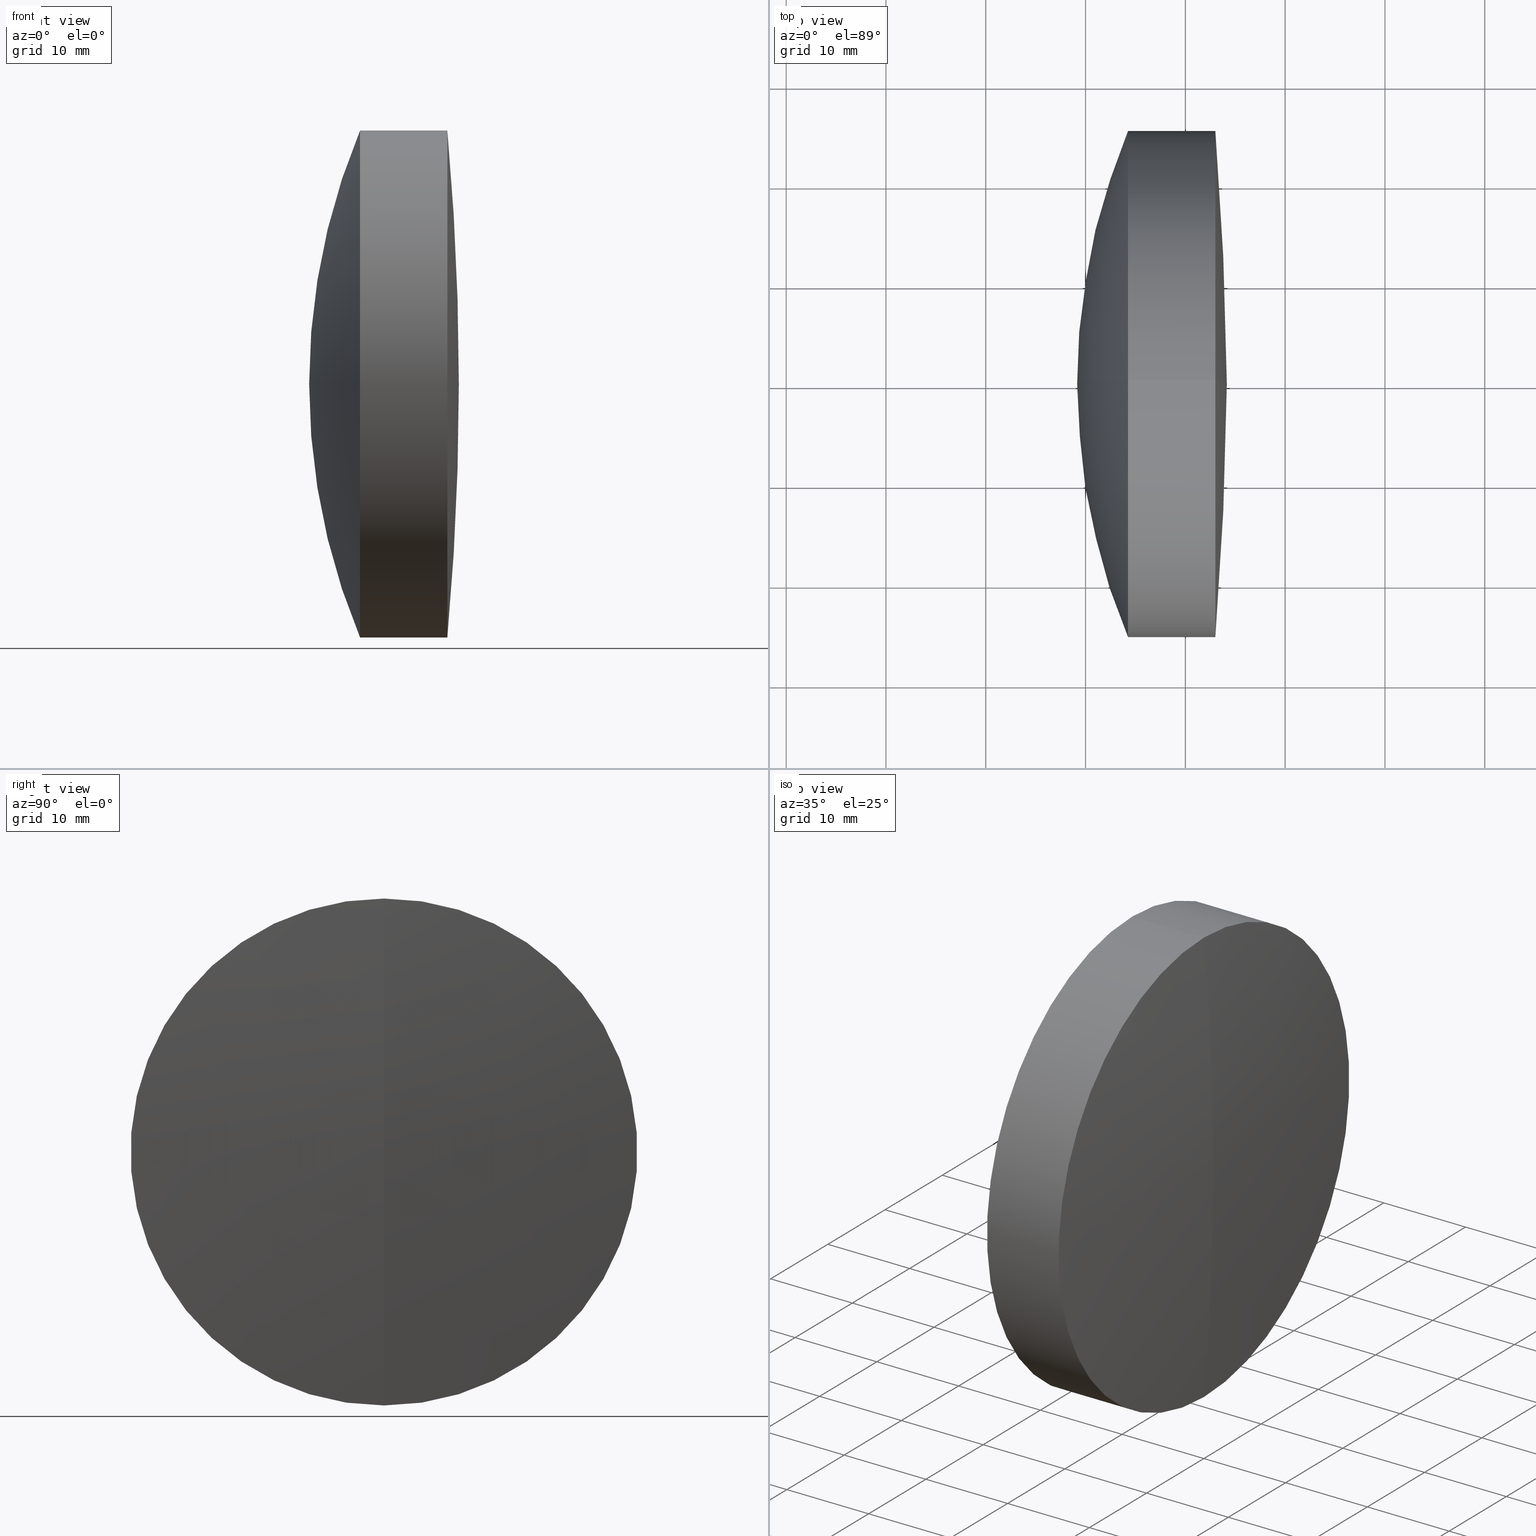
[diagram: canonical four-view strip — front | top / right | iso, engineering-drawing reading convention]
A machine part, canonical four-view strip (front | top / right | iso — engineering-drawing reading convention). The complete STEP part file that produces these views, byte-faithful:
ISO-10303-21;
HEADER;
FILE_DESCRIPTION (( 'STEP AP214' ),
    '1' );
FILE_NAME ('145135.STEP',
    '2019-06-05T01:52:00',
    ( 'user' ),
    ( '΢���й�' ),
    'SwSTEP 2.0',
    'SolidWorks 2016',
    '' );
FILE_SCHEMA (( 'AUTOMOTIVE_DESIGN' ));
ENDSEC;

DATA;
#1 = ADVANCED_FACE ( 'NONE', ( #89 ), #25, .T. ) ;
#2 = AXIS2_PLACEMENT_3D ( 'NONE', #224, #59, #14 ) ;
#3 = PRODUCT_DEFINITION_SHAPE ( 'NONE', 'NONE',  #299 ) ;
#4 = ORIENTED_EDGE ( 'NONE', *, *, #20, .T. ) ;
#5 = DIRECTION ( 'NONE',  ( 0.0000000000000000000, 0.0000000000000000000, 1.000000000000000000 ) ) ;
#6 = AXIS2_PLACEMENT_3D ( 'NONE', #162, #53, #134 ) ;
#7 = VERTEX_POINT ( 'NONE', #103 ) ;
#8 = EDGE_LOOP ( 'NONE', ( #293, #50, #82, #208 ) ) ;
#9 =( GEOMETRIC_REPRESENTATION_CONTEXT ( 3 ) GLOBAL_UNCERTAINTY_ASSIGNED_CONTEXT ( ( #12 ) ) GLOBAL_UNIT_ASSIGNED_CONTEXT ( ( #42, #204, #21 ) ) REPRESENTATION_CONTEXT ( 'NONE', 'WORKASPACE' ) );
#10 = DIRECTION ( 'NONE',  ( 0.0000000000000000000, 1.000000000000000000, 0.0000000000000000000 ) ) ;
#11 = FILL_AREA_STYLE ('',( #170 ) ) ;
#12 = UNCERTAINTY_MEASURE_WITH_UNIT (LENGTH_MEASURE( 1.000000000000000100E-005 ), #42, 'distance_accuracy_value', 'NONE');
#13 = CARTESIAN_POINT ( 'NONE',  ( 536.0667524492886300, 3.110602869834283200E-015, -25.40000000000006300 ) ) ;
#14 = DIRECTION ( 'NONE',  ( 0.0000000000000000000, 0.0000000000000000000, 1.000000000000000000 ) ) ;
#15 = ORIENTED_EDGE ( 'NONE', *, *, #20, .F. ) ;
#16 = AXIS2_PLACEMENT_3D ( 'NONE', #188, #326, #101 ) ;
#17 = EDGE_LOOP ( 'NONE', ( #274, #175, #90 ) ) ;
#18 = CIRCLE ( 'NONE', #73, 55.99999999999996400 ) ;
#19 = DIRECTION ( 'NONE',  ( -0.0000000000000000000, 1.000000000000000000, 1.224646799147353200E-016 ) ) ;
#20 = EDGE_CURVE ( 'NONE', #212, #295, #164, .T. ) ;
#21 =( NAMED_UNIT ( * ) SI_UNIT ( $, .STERADIAN. ) SOLID_ANGLE_UNIT ( ) );
#22 = FILL_AREA_STYLE_COLOUR ( '', #157 ) ;
#23 = ADVANCED_FACE ( 'NONE', ( #311 ), #32, .T. ) ;
#24 = FILL_AREA_STYLE ('',( #271 ) ) ;
#25 = SPHERICAL_SURFACE ( 'NONE', #83, 280.5999999999999700 ) ;
#26 = VERTEX_POINT ( 'NONE', #129 ) ;
#27 = AXIS2_PLACEMENT_3D ( 'NONE', #178, #19, #202 ) ;
#28 = CARTESIAN_POINT ( 'NONE',  ( 536.0667524492886300, 3.110602869834276100E-015, -25.39999999999998800 ) ) ;
#29 = CARTESIAN_POINT ( 'NONE',  ( 534.2585188813353600, 0.0000000000000000000, 0.0000000000000000000 ) ) ;
#30 = COLOUR_RGB ( '',1.000000000000000000, 1.000000000000000000, 1.000000000000000000 ) ;
#31 = CARTESIAN_POINT ( 'NONE',  ( 594.9584365089566500, 0.0000000000000000000, -1.033766538299557700E-014 ) ) ;
#32 = CYLINDRICAL_SURFACE ( 'NONE', #47, 25.40000000000005500 ) ;
#33 = VERTEX_POINT ( 'NONE', #297 ) ;
#34 = FACE_OUTER_BOUND ( 'NONE', #300, .T. ) ;
#35 = SPHERICAL_SURFACE ( 'NONE', #93, 55.99999999999996400 ) ;
#36 = AXIS2_PLACEMENT_3D ( 'NONE', #118, #288, #265 ) ;
#37 = DIRECTION ( 'NONE',  ( 0.0000000000000000000, -1.224646799147353200E-016, 1.000000000000000000 ) ) ;
#38 = DIRECTION ( 'NONE',  ( 0.0000000000000000000, 0.0000000000000000000, 1.000000000000000000 ) ) ;
#39 = DIRECTION ( 'NONE',  ( 0.0000000000000000000, 1.000000000000000000, 0.0000000000000000000 ) ) ;
#40 = CIRCLE ( 'NONE', #287, 25.40000000000005500 ) ;
#41 = CARTESIAN_POINT ( 'NONE',  ( 124.5233095260452400, 0.0000000000000000000, 25.39999999999998800 ) ) ;
#42 =( LENGTH_UNIT ( ) NAMED_UNIT ( * ) SI_UNIT ( .MILLI., .METRE. ) );
#43 = AXIS2_PLACEMENT_3D ( 'NONE', #149, #267, #92 ) ;
#44 = ORIENTED_EDGE ( 'NONE', *, *, #114, .T. ) ;
#45 = ADVANCED_FACE ( 'NONE', ( #95 ), #302, .T. ) ;
#46 = SURFACE_STYLE_USAGE ( .BOTH. , #210 ) ;
#47 = AXIS2_PLACEMENT_3D ( 'NONE', #160, #327, #215 ) ;
#48 = AXIS2_PLACEMENT_3D ( 'NONE', #192, #39, #329 ) ;
#49 = CIRCLE ( 'NONE', #6, 65.80000000000006800 ) ;
#50 = ORIENTED_EDGE ( 'NONE', *, *, #201, .T. ) ;
#51 = DIRECTION ( 'NONE',  ( -1.000000000000000000, -0.0000000000000000000, -0.0000000000000000000 ) ) ;
#52 = EDGE_LOOP ( 'NONE', ( #335, #223, #282, #108 ) ) ;
#53 = DIRECTION ( 'NONE',  ( -0.0000000000000000000, 1.000000000000000000, 1.224646799147353200E-016 ) ) ;
#54 = DIRECTION ( 'NONE',  ( -0.0000000000000000000, 1.000000000000000000, 1.224646799147353200E-016 ) ) ;
#55 = ORIENTED_EDGE ( 'NONE', *, *, #303, .F. ) ;
#56 = AXIS2_PLACEMENT_3D ( 'NONE', #343, #205, #345 ) ;
#57 = AXIS2_PLACEMENT_3D ( 'NONE', #334, #168, #37 ) ;
#58 = DIRECTION ( 'NONE',  ( -1.000000000000000000, -0.0000000000000000000, -0.0000000000000000000 ) ) ;
#59 = DIRECTION ( 'NONE',  ( -1.000000000000000000, -0.0000000000000000000, -0.0000000000000000000 ) ) ;
#60 = VERTEX_POINT ( 'NONE', #28 ) ;
#61 = DIRECTION ( 'NONE',  ( 0.0000000000000000000, 0.0000000000000000000, 1.000000000000000000 ) ) ;
#62 = EDGE_CURVE ( 'NONE', #26, #60, #123, .T. ) ;
#63 = ORIENTED_EDGE ( 'NONE', *, *, #248, .T. ) ;
#64 = SURFACE_SIDE_STYLE ('',( #158 ) ) ;
#65 = UNCERTAINTY_MEASURE_WITH_UNIT (LENGTH_MEASURE( 1.000000000000000100E-005 ), #279, 'distance_accuracy_value', 'NONE');
#66 = FILL_AREA_STYLE ('',( #22 ) ) ;
#67 = EDGE_LOOP ( 'NONE', ( #193, #234, #132 ) ) ;
#68 = ADVANCED_FACE ( 'NONE', ( #242 ), #195, .F. ) ;
#69 =( NAMED_UNIT ( * ) PLANE_ANGLE_UNIT ( ) SI_UNIT ( $, .RADIAN. ) );
#70 = FACE_OUTER_BOUND ( 'NONE', #96, .T. ) ;
#71 = ORIENTED_EDGE ( 'NONE', *, *, #84, .T. ) ;
#72 = CARTESIAN_POINT ( 'NONE',  ( 486.1584365089566400, 0.0000000000000000000, -9.937829943441984000E-015 ) ) ;
#73 = AXIS2_PLACEMENT_3D ( 'NONE', #91, #347, #182 ) ;
#74 = CARTESIAN_POINT ( 'NONE',  ( 486.1584365089566400, 0.0000000000000000000, -9.937829943441984000E-015 ) ) ;
#75 = DIRECTION ( 'NONE',  ( 0.0000000000000000000, 0.0000000000000000000, 1.000000000000000000 ) ) ;
#76 = ORIENTED_EDGE ( 'NONE', *, *, #231, .F. ) ;
#77 = EDGE_CURVE ( 'NONE', #312, #125, #174, .T. ) ;
#78 = CIRCLE ( 'NONE', #185, 55.99999999999996400 ) ;
#79 = EDGE_LOOP ( 'NONE', ( #55, #243, #221 ) ) ;
#80 = CARTESIAN_POINT ( 'NONE',  ( 536.0667524492886300, 0.0000000000000000000, 0.0000000000000000000 ) ) ;
#81 = AXIS2_PLACEMENT_3D ( 'NONE', #217, #51, #222 ) ;
#82 = ORIENTED_EDGE ( 'NONE', *, *, #194, .F. ) ;
#83 = AXIS2_PLACEMENT_3D ( 'NONE', #191, #301, #75 ) ;
#84 = EDGE_CURVE ( 'NONE', #212, #304, #49, .T. ) ;
#85 = VECTOR ( 'NONE', #247, 1000.000000000000000 ) ;
#86 = PRESENTATION_STYLE_ASSIGNMENT (( #237 ) ) ;
#87 = CARTESIAN_POINT ( 'NONE',  ( 534.2585188813353600, 0.0000000000000000000, 0.0000000000000000000 ) ) ;
#88 = LINE ( 'NONE', #143, #259 ) ;
#89 = FACE_OUTER_BOUND ( 'NONE', #203, .T. ) ;
#90 = ORIENTED_EDGE ( 'NONE', *, *, #62, .F. ) ;
#91 = CARTESIAN_POINT ( 'NONE',  ( 486.1584365089566400, 0.0000000000000000000, -9.937829943441984000E-015 ) ) ;
#92 = DIRECTION ( 'NONE',  ( 0.0000000000000000000, 0.0000000000000000000, -1.000000000000000000 ) ) ;
#93 = AXIS2_PLACEMENT_3D ( 'NONE', #116, #147, #61 ) ;
#94 = ADVANCED_FACE ( 'NONE', ( #70 ), #115, .T. ) ;
#95 = FACE_OUTER_BOUND ( 'NONE', #17, .T. ) ;
#96 = EDGE_LOOP ( 'NONE', ( #144, #117, #154 ) ) ;
#97 = CIRCLE ( 'NONE', #253, 280.5999999999999700 ) ;
#98 = CYLINDRICAL_SURFACE ( 'NONE', #56, 25.39999999999998800 ) ;
#99 = EDGE_CURVE ( 'NONE', #233, #105, #97, .T. ) ;
#100 = FACE_OUTER_BOUND ( 'NONE', #286, .T. ) ;
#101 = DIRECTION ( 'NONE',  ( 0.0000000000000000000, 0.0000000000000000000, 1.000000000000000000 ) ) ;
#102 = ORIENTED_EDGE ( 'NONE', *, *, #201, .F. ) ;
#103 = CARTESIAN_POINT ( 'NONE',  ( 543.0064638771954200, 3.110602869834284000E-015, -25.40000000000005500 ) ) ;
#104 = DIRECTION ( 'NONE',  ( 0.0000000000000000000, 1.000000000000000000, 0.0000000000000000000 ) ) ;
#105 = VERTEX_POINT ( 'NONE', #199 ) ;
#106 = FACE_OUTER_BOUND ( 'NONE', #197, .T. ) ;
#107 = CIRCLE ( 'NONE', #332, 65.80000000000006800 ) ;
#108 = ORIENTED_EDGE ( 'NONE', *, *, #216, .F. ) ;
#109 =( NAMED_UNIT ( * ) PLANE_ANGLE_UNIT ( ) SI_UNIT ( $, .RADIAN. ) );
#110 = DIRECTION ( 'NONE',  ( 0.0000000000000000000, -1.000000000000000000, 0.0000000000000000000 ) ) ;
#111 = DIRECTION ( 'NONE',  ( 0.0000000000000000000, 0.0000000000000000000, 1.000000000000000000 ) ) ;
#112 = DIRECTION ( 'NONE',  ( -1.000000000000000000, -0.0000000000000000000, -0.0000000000000000000 ) ) ;
#113 = DIRECTION ( 'NONE',  ( -1.000000000000000000, -0.0000000000000000000, -0.0000000000000000000 ) ) ;
#114 = EDGE_CURVE ( 'NONE', #105, #7, #40, .T. ) ;
#115 = SPHERICAL_SURFACE ( 'NONE', #133, 55.99999999999998600 ) ;
#116 = CARTESIAN_POINT ( 'NONE',  ( 486.1584365089566400, 0.0000000000000000000, -9.937829943441984000E-015 ) ) ;
#117 = ORIENTED_EDGE ( 'NONE', *, *, #273, .T. ) ;
#118 = CARTESIAN_POINT ( 'NONE',  ( 543.0064638771954200, 0.0000000000000000000, 0.0000000000000000000 ) ) ;
#119 = ADVANCED_FACE ( 'NONE', ( #34 ), #319, .T. ) ;
#120 =( NAMED_UNIT ( * ) SI_UNIT ( $, .STERADIAN. ) SOLID_ANGLE_UNIT ( ) );
#121 = CLOSED_SHELL ( 'NONE', ( #45, #270, #240, #119, #317, #94 ) ) ;
#122 = DIRECTION ( 'NONE',  ( 0.0000000000000000000, 0.0000000000000000000, 1.000000000000000000 ) ) ;
#123 = CIRCLE ( 'NONE', #156, 25.39999999999998800 ) ;
#124 = PRODUCT_DEFINITION_CONTEXT ( 'detailed design', #328, 'design' ) ;
#125 = VERTEX_POINT ( 'NONE', #13 ) ;
#126 = DIRECTION ( 'NONE',  ( -1.000000000000000000, -0.0000000000000000000, -0.0000000000000000000 ) ) ;
#127 =( GEOMETRIC_REPRESENTATION_CONTEXT ( 3 ) GLOBAL_UNCERTAINTY_ASSIGNED_CONTEXT ( ( #298 ) ) GLOBAL_UNIT_ASSIGNED_CONTEXT ( ( #238, #291, #120 ) ) REPRESENTATION_CONTEXT ( 'NONE', 'WORKASPACE' ) );
#128 = MANIFOLD_SOLID_BREP ( '��ת1', #121 ) ;
#129 = CARTESIAN_POINT ( 'NONE',  ( 536.0667524492886300, 0.0000000000000000000, 25.39999999999998800 ) ) ;
#130 = DIRECTION ( 'NONE',  ( 0.0000000000000000000, 1.000000000000000000, 0.0000000000000000000 ) ) ;
#131 = APPLICATION_PROTOCOL_DEFINITION ( 'draft international standard', 'automotive_design', 1998, #328 ) ;
#132 = ORIENTED_EDGE ( 'NONE', *, *, #77, .T. ) ;
#133 = AXIS2_PLACEMENT_3D ( 'NONE', #72, #104, #220 ) ;
#134 = DIRECTION ( 'NONE',  ( 0.0000000000000000000, -1.224646799147353200E-016, 1.000000000000000000 ) ) ;
#135 = AXIS2_PLACEMENT_3D ( 'NONE', #74, #130, #246 ) ;
#136 = ORIENTED_EDGE ( 'NONE', *, *, #145, .F. ) ;
#137 = CARTESIAN_POINT ( 'NONE',  ( 542.1584365089565800, 0.0000000000000000000, -6.508818905829395900E-015 ) ) ;
#138 = SURFACE_STYLE_USAGE ( .BOTH. , #306 ) ;
#139 = DIRECTION ( 'NONE',  ( 0.0000000000000000000, 1.000000000000000000, 0.0000000000000000000 ) ) ;
#140 = ORIENTED_EDGE ( 'NONE', *, *, #114, .F. ) ;
#141 = DIRECTION ( 'NONE',  ( 0.0000000000000000000, 0.0000000000000000000, -1.000000000000000000 ) ) ;
#142 = PRODUCT ( '145135', '145135', '', ( #161 ) ) ;
#143 = CARTESIAN_POINT ( 'NONE',  ( -0.5519199926577972300, 0.0000000000000000000, 25.40000000000005500 ) ) ;
#144 = ORIENTED_EDGE ( 'NONE', *, *, #289, .F. ) ;
#145 = EDGE_CURVE ( 'NONE', #233, #7, #250, .T. ) ;
#146 = ORIENTED_EDGE ( 'NONE', *, *, #145, .T. ) ;
#147 = DIRECTION ( 'NONE',  ( 0.0000000000000000000, 1.000000000000000000, 0.0000000000000000000 ) ) ;
#148 = AXIS2_PLACEMENT_3D ( 'NONE', #341, #113, #207 ) ;
#149 = CARTESIAN_POINT ( 'NONE',  ( 486.1584365089566400, 0.0000000000000000000, -9.937829943441984000E-015 ) ) ;
#150 = ADVANCED_FACE ( 'NONE', ( #106 ), #152, .T. ) ;
#151 = APPLICATION_PROTOCOL_DEFINITION ( 'draft international standard', 'automotive_design', 1998, #183 ) ;
#152 = SPHERICAL_SURFACE ( 'NONE', #277, 280.5999999999999700 ) ;
#153 = VERTEX_POINT ( 'NONE', #137 ) ;
#154 = ORIENTED_EDGE ( 'NONE', *, *, #214, .F. ) ;
#155 = CYLINDRICAL_SURFACE ( 'NONE', #2, 25.40000000000005500 ) ;
#156 = AXIS2_PLACEMENT_3D ( 'NONE', #324, #126, #296 ) ;
#157 = COLOUR_RGB ( '',1.000000000000000000, 1.000000000000000000, 1.000000000000000000 ) ;
#158 = SURFACE_STYLE_FILL_AREA ( #66 ) ;
#159 = FACE_OUTER_BOUND ( 'NONE', #8, .T. ) ;
#160 = CARTESIAN_POINT ( 'NONE',  ( -0.5519199926577972300, 0.0000000000000000000, 0.0000000000000000000 ) ) ;
#161 = PRODUCT_CONTEXT ( 'NONE', #183, 'mechanical' ) ;
#162 = CARTESIAN_POINT ( 'NONE',  ( 594.9584365089566500, 0.0000000000000000000, -1.033766538299557700E-014 ) ) ;
#163 = CIRCLE ( 'NONE', #263, 25.39999999999998800 ) ;
#164 = CIRCLE ( 'NONE', #331, 25.39999999999998800 ) ;
#165 = ORIENTED_EDGE ( 'NONE', *, *, #219, .T. ) ;
#166 = CIRCLE ( 'NONE', #27, 55.99999999999998600 ) ;
#167 = CARTESIAN_POINT ( 'NONE',  ( 486.1584365089566400, 0.0000000000000000000, -9.937829943441984000E-015 ) ) ;
#168 = DIRECTION ( 'NONE',  ( -0.0000000000000000000, 1.000000000000000000, 1.224646799147353200E-016 ) ) ;
#169 = STYLED_ITEM ( 'NONE', ( #239 ), #275 ) ;
#170 = FILL_AREA_STYLE_COLOUR ( '', #330 ) ;
#171 = CARTESIAN_POINT ( 'NONE',  ( 594.9584365089566500, 0.0000000000000000000, -1.033766538299557700E-014 ) ) ;
#172 = CIRCLE ( 'NONE', #313, 25.39999999999998800 ) ;
#173 = DIRECTION ( 'NONE',  ( -1.000000000000000000, -0.0000000000000000000, -0.0000000000000000000 ) ) ;
#174 = CIRCLE ( 'NONE', #81, 25.40000000000005200 ) ;
#175 = ORIENTED_EDGE ( 'NONE', *, *, #289, .T. ) ;
#176 = SURFACE_STYLE_FILL_AREA ( #11 ) ;
#177 = EDGE_CURVE ( 'NONE', #33, #125, #78, .T. ) ;
#178 = CARTESIAN_POINT ( 'NONE',  ( 486.1584365089566400, 0.0000000000000000000, -9.937829943441984000E-015 ) ) ;
#179 = MECHANICAL_DESIGN_GEOMETRIC_PRESENTATION_REPRESENTATION (  '', ( #213 ), #280 ) ;
#180 = SPHERICAL_SURFACE ( 'NONE', #48, 65.80000000000006800 ) ;
#181 = ORIENTED_EDGE ( 'NONE', *, *, #211, .F. ) ;
#182 = DIRECTION ( 'NONE',  ( 0.0000000000000000000, 0.0000000000000000000, -1.000000000000000000 ) ) ;
#183 = APPLICATION_CONTEXT ( 'automotive_design' ) ;
#184 = CYLINDRICAL_SURFACE ( 'NONE', #148, 25.39999999999998800 ) ;
#185 = AXIS2_PLACEMENT_3D ( 'NONE', #167, #54, #252 ) ;
#186 = FACE_OUTER_BOUND ( 'NONE', #249, .T. ) ;
#187 = ORIENTED_EDGE ( 'NONE', *, *, #194, .T. ) ;
#188 = CARTESIAN_POINT ( 'NONE',  ( 486.1584365089566400, 0.0000000000000000000, -9.937829943441984000E-015 ) ) ;
#189 = PRESENTATION_LAYER_ASSIGNMENT (  '', '', ( #169 ) ) ;
#190 = DIRECTION ( 'NONE',  ( -1.000000000000000000, -0.0000000000000000000, -0.0000000000000000000 ) ) ;
#191 = CARTESIAN_POINT ( 'NONE',  ( 263.5584365089565600, 0.0000000000000000000, 0.0000000000000000000 ) ) ;
#192 = CARTESIAN_POINT ( 'NONE',  ( 594.9584365089566500, 0.0000000000000000000, -1.033766538299557700E-014 ) ) ;
#193 = ORIENTED_EDGE ( 'NONE', *, *, #177, .F. ) ;
#194 = EDGE_CURVE ( 'NONE', #295, #212, #163, .T. ) ;
#195 = SPHERICAL_SURFACE ( 'NONE', #16, 55.99999999999996400 ) ;
#196 = PRESENTATION_LAYER_ASSIGNMENT (  '', '', ( #213 ) ) ;
#197 = EDGE_LOOP ( 'NONE', ( #266, #146, #140 ) ) ;
#198 = DIRECTION ( 'NONE',  ( 0.0000000000000000000, 0.0000000000000000000, 1.000000000000000000 ) ) ;
#199 = CARTESIAN_POINT ( 'NONE',  ( 543.0064638771954200, 0.0000000000000000000, 25.40000000000005500 ) ) ;
#200 = ORIENTED_EDGE ( 'NONE', *, *, #231, .T. ) ;
#201 = EDGE_CURVE ( 'NONE', #60, #212, #232, .T. ) ;
#202 = DIRECTION ( 'NONE',  ( 0.0000000000000000000, -1.224646799147353500E-016, 1.000000000000000000 ) ) ;
#203 = EDGE_LOOP ( 'NONE', ( #136, #228, #256 ) ) ;
#204 =( NAMED_UNIT ( * ) PLANE_ANGLE_UNIT ( ) SI_UNIT ( $, .RADIAN. ) );
#205 = DIRECTION ( 'NONE',  ( -1.000000000000000000, -0.0000000000000000000, -0.0000000000000000000 ) ) ;
#206 = MECHANICAL_DESIGN_GEOMETRIC_PRESENTATION_REPRESENTATION (  '', ( #169 ), #226 ) ;
#207 = DIRECTION ( 'NONE',  ( 0.0000000000000000000, 0.0000000000000000000, 1.000000000000000000 ) ) ;
#208 = ORIENTED_EDGE ( 'NONE', *, *, #219, .F. ) ;
#209 = ADVANCED_FACE ( 'NONE', ( #316 ), #155, .T. ) ;
#210 = SURFACE_SIDE_STYLE ('',( #308 ) ) ;
#211 = EDGE_CURVE ( 'NONE', #105, #312, #88, .T. ) ;
#212 = VERTEX_POINT ( 'NONE', #339 ) ;
#213 = STYLED_ITEM ( 'NONE', ( #262 ), #128 ) ;
#214 = EDGE_CURVE ( 'NONE', #60, #26, #172, .T. ) ;
#215 = DIRECTION ( 'NONE',  ( 0.0000000000000000000, 0.0000000000000000000, 1.000000000000000000 ) ) ;
#216 = EDGE_CURVE ( 'NONE', #125, #312, #235, .T. ) ;
#217 = CARTESIAN_POINT ( 'NONE',  ( 536.0667524492886300, 0.0000000000000000000, 0.0000000000000000000 ) ) ;
#218 = CARTESIAN_POINT ( 'NONE',  ( -0.5519199926577972300, 3.110602869834284000E-015, -25.40000000000005500 ) ) ;
#219 = EDGE_CURVE ( 'NONE', #26, #295, #321, .T. ) ;
#220 = DIRECTION ( 'NONE',  ( 0.0000000000000000000, 0.0000000000000000000, 1.000000000000000000 ) ) ;
#221 = ORIENTED_EDGE ( 'NONE', *, *, #216, .T. ) ;
#222 = DIRECTION ( 'NONE',  ( 0.0000000000000000000, 0.0000000000000000000, 1.000000000000000000 ) ) ;
#223 = ORIENTED_EDGE ( 'NONE', *, *, #261, .T. ) ;
#224 = CARTESIAN_POINT ( 'NONE',  ( -0.5519199926577972300, 0.0000000000000000000, 0.0000000000000000000 ) ) ;
#225 = CARTESIAN_POINT ( 'NONE',  ( 263.5584365089565600, 0.0000000000000000000, 0.0000000000000000000 ) ) ;
#226 =( GEOMETRIC_REPRESENTATION_CONTEXT ( 3 ) GLOBAL_UNCERTAINTY_ASSIGNED_CONTEXT ( ( #325 ) ) GLOBAL_UNIT_ASSIGNED_CONTEXT ( ( #241, #69, #272 ) ) REPRESENTATION_CONTEXT ( 'NONE', 'WORKASPACE' ) );
#227 = DIRECTION ( 'NONE',  ( 0.0000000000000000000, 0.0000000000000000000, 1.000000000000000000 ) ) ;
#228 = ORIENTED_EDGE ( 'NONE', *, *, #99, .T. ) ;
#229 = CARTESIAN_POINT ( 'NONE',  ( 536.0667524492886300, 0.0000000000000000000, 0.0000000000000000000 ) ) ;
#230 = CARTESIAN_POINT ( 'NONE',  ( 124.5233095260452400, 3.110602869834276100E-015, -25.39999999999998800 ) ) ;
#231 = EDGE_CURVE ( 'NONE', #295, #304, #107, .T. ) ;
#232 = LINE ( 'NONE', #230, #310 ) ;
#233 = VERTEX_POINT ( 'NONE', #258 ) ;
#234 = ORIENTED_EDGE ( 'NONE', *, *, #303, .T. ) ;
#235 = CIRCLE ( 'NONE', #294, 25.40000000000005200 ) ;
#236 = AXIS2_PLACEMENT_3D ( 'NONE', #31, #139, #198 ) ;
#237 = SURFACE_STYLE_USAGE ( .BOTH. , #64 ) ;
#238 =( LENGTH_UNIT ( ) NAMED_UNIT ( * ) SI_UNIT ( .MILLI., .METRE. ) );
#239 = PRESENTATION_STYLE_ASSIGNMENT (( #46 ) ) ;
#240 = ADVANCED_FACE ( 'NONE', ( #186 ), #180, .T. ) ;
#241 =( LENGTH_UNIT ( ) NAMED_UNIT ( * ) SI_UNIT ( .MILLI., .METRE. ) );
#242 = FACE_OUTER_BOUND ( 'NONE', #67, .T. ) ;
#243 = ORIENTED_EDGE ( 'NONE', *, *, #177, .T. ) ;
#244 = CIRCLE ( 'NONE', #43, 55.99999999999998600 ) ;
#245 = CIRCLE ( 'NONE', #36, 25.40000000000005500 ) ;
#246 = DIRECTION ( 'NONE',  ( 0.0000000000000000000, 0.0000000000000000000, 1.000000000000000000 ) ) ;
#247 = DIRECTION ( 'NONE',  ( -1.000000000000000000, -0.0000000000000000000, -0.0000000000000000000 ) ) ;
#248 = EDGE_CURVE ( 'NONE', #7, #125, #346, .T. ) ;
#249 = EDGE_LOOP ( 'NONE', ( #187, #71, #76 ) ) ;
#250 = CIRCLE ( 'NONE', #57, 280.5999999999999700 ) ;
#251 = DIRECTION ( 'NONE',  ( -1.000000000000000000, -0.0000000000000000000, -0.0000000000000000000 ) ) ;
#252 = DIRECTION ( 'NONE',  ( 0.0000000000000000000, -1.224646799147353200E-016, 1.000000000000000000 ) ) ;
#253 = AXIS2_PLACEMENT_3D ( 'NONE', #338, #110, #307 ) ;
#254 = DIRECTION ( 'NONE',  ( 0.0000000000000000000, 0.0000000000000000000, 1.000000000000000000 ) ) ;
#255 =( NAMED_UNIT ( * ) SI_UNIT ( $, .STERADIAN. ) SOLID_ANGLE_UNIT ( ) );
#256 = ORIENTED_EDGE ( 'NONE', *, *, #261, .F. ) ;
#257 = CARTESIAN_POINT ( 'NONE',  ( 543.0064638771954200, 0.0000000000000000000, 0.0000000000000000000 ) ) ;
#258 = CARTESIAN_POINT ( 'NONE',  ( 544.1584365089564700, 0.0000000000000000000, 1.718179459203736200E-014 ) ) ;
#259 = VECTOR ( 'NONE', #309, 1000.000000000000000 ) ;
#260 = DIRECTION ( 'NONE',  ( 0.0000000000000000000, 0.0000000000000000000, 1.000000000000000000 ) ) ;
#261 = EDGE_CURVE ( 'NONE', #7, #105, #245, .T. ) ;
#262 = PRESENTATION_STYLE_ASSIGNMENT (( #138 ) ) ;
#263 = AXIS2_PLACEMENT_3D ( 'NONE', #87, #112, #260 ) ;
#264 = CARTESIAN_POINT ( 'NONE',  ( 534.2585188813353600, 0.0000000000000000000, 25.39999999999999100 ) ) ;
#265 = DIRECTION ( 'NONE',  ( 0.0000000000000000000, 0.0000000000000000000, 1.000000000000000000 ) ) ;
#266 = ORIENTED_EDGE ( 'NONE', *, *, #99, .F. ) ;
#267 = DIRECTION ( 'NONE',  ( 0.0000000000000000000, -1.000000000000000000, 0.0000000000000000000 ) ) ;
#268 = MANIFOLD_SOLID_BREP ( '��ת3', #340 ) ;
#269 = CARTESIAN_POINT ( 'NONE',  ( 536.0667524492886300, 0.0000000000000000000, 25.40000000000004800 ) ) ;
#270 = ADVANCED_FACE ( 'NONE', ( #159 ), #98, .T. ) ;
#271 = FILL_AREA_STYLE_COLOUR ( '', #30 ) ;
#272 =( NAMED_UNIT ( * ) SI_UNIT ( $, .STERADIAN. ) SOLID_ANGLE_UNIT ( ) );
#273 = EDGE_CURVE ( 'NONE', #153, #26, #244, .T. ) ;
#274 = ORIENTED_EDGE ( 'NONE', *, *, #273, .F. ) ;
#275 = ADVANCED_BREP_SHAPE_REPRESENTATION ( '145135', ( #128, #268, #281 ), #127 ) ;
#276 = ORIENTED_EDGE ( 'NONE', *, *, #77, .F. ) ;
#277 = AXIS2_PLACEMENT_3D ( 'NONE', #225, #10, #254 ) ;
#278 = EDGE_LOOP ( 'NONE', ( #44, #63, #276, #181 ) ) ;
#279 =( LENGTH_UNIT ( ) NAMED_UNIT ( * ) SI_UNIT ( .MILLI., .METRE. ) );
#280 =( GEOMETRIC_REPRESENTATION_CONTEXT ( 3 ) GLOBAL_UNCERTAINTY_ASSIGNED_CONTEXT ( ( #65 ) ) GLOBAL_UNIT_ASSIGNED_CONTEXT ( ( #279, #109, #255 ) ) REPRESENTATION_CONTEXT ( 'NONE', 'WORKASPACE' ) );
#281 = AXIS2_PLACEMENT_3D ( 'NONE', #292, #122, #318 ) ;
#282 = ORIENTED_EDGE ( 'NONE', *, *, #211, .T. ) ;
#283 = DIRECTION ( 'NONE',  ( 0.0000000000000000000, -1.000000000000000000, 0.0000000000000000000 ) ) ;
#284 = VECTOR ( 'NONE', #173, 1000.000000000000000 ) ;
#285 = CARTESIAN_POINT ( 'NONE',  ( 529.1584365089565800, 0.0000000000000000000, -6.308577413800780900E-015 ) ) ;
#286 = EDGE_LOOP ( 'NONE', ( #102, #342, #165, #15 ) ) ;
#287 = AXIS2_PLACEMENT_3D ( 'NONE', #257, #336, #227 ) ;
#288 = DIRECTION ( 'NONE',  ( -1.000000000000000000, -0.0000000000000000000, -0.0000000000000000000 ) ) ;
#289 = EDGE_CURVE ( 'NONE', #153, #60, #166, .T. ) ;
#290 = ADVANCED_FACE ( 'NONE', ( #314 ), #35, .F. ) ;
#291 =( NAMED_UNIT ( * ) PLANE_ANGLE_UNIT ( ) SI_UNIT ( $, .RADIAN. ) );
#292 = CARTESIAN_POINT ( 'NONE',  ( 0.0000000000000000000, 0.0000000000000000000, 0.0000000000000000000 ) ) ;
#293 = ORIENTED_EDGE ( 'NONE', *, *, #62, .T. ) ;
#294 = AXIS2_PLACEMENT_3D ( 'NONE', #229, #251, #111 ) ;
#295 = VERTEX_POINT ( 'NONE', #264 ) ;
#296 = DIRECTION ( 'NONE',  ( 0.0000000000000000000, 0.0000000000000000000, 1.000000000000000000 ) ) ;
#297 = CARTESIAN_POINT ( 'NONE',  ( 542.1584365089565800, 0.0000000000000000000, -6.508818905829397400E-015 ) ) ;
#298 = UNCERTAINTY_MEASURE_WITH_UNIT (LENGTH_MEASURE( 1.000000000000000100E-005 ), #238, 'distance_accuracy_value', 'NONE');
#299 = PRODUCT_DEFINITION ( 'δ֪', '', #315, #124 ) ;
#300 = EDGE_LOOP ( 'NONE', ( #323, #4, #200 ) ) ;
#301 = DIRECTION ( 'NONE',  ( 0.0000000000000000000, 1.000000000000000000, 0.0000000000000000000 ) ) ;
#302 = SPHERICAL_SURFACE ( 'NONE', #135, 55.99999999999998600 ) ;
#303 = EDGE_CURVE ( 'NONE', #33, #312, #18, .T. ) ;
#304 = VERTEX_POINT ( 'NONE', #285 ) ;
#305 = STYLED_ITEM ( 'NONE', ( #86 ), #268 ) ;
#306 = SURFACE_SIDE_STYLE ('',( #176 ) ) ;
#307 = DIRECTION ( 'NONE',  ( 0.0000000000000000000, 0.0000000000000000000, -1.000000000000000000 ) ) ;
#308 = SURFACE_STYLE_FILL_AREA ( #24 ) ;
#309 = DIRECTION ( 'NONE',  ( -1.000000000000000000, -0.0000000000000000000, -0.0000000000000000000 ) ) ;
#310 = VECTOR ( 'NONE', #333, 1000.000000000000000 ) ;
#311 = FACE_OUTER_BOUND ( 'NONE', #52, .T. ) ;
#312 = VERTEX_POINT ( 'NONE', #269 ) ;
#313 = AXIS2_PLACEMENT_3D ( 'NONE', #80, #58, #38 ) ;
#314 = FACE_OUTER_BOUND ( 'NONE', #79, .T. ) ;
#315 = PRODUCT_DEFINITION_FORMATION_WITH_SPECIFIED_SOURCE ( '�κ�', '', #142, .NOT_KNOWN. ) ;
#316 = FACE_OUTER_BOUND ( 'NONE', #278, .T. ) ;
#317 = ADVANCED_FACE ( 'NONE', ( #100 ), #184, .T. ) ;
#318 = DIRECTION ( 'NONE',  ( 1.000000000000000000, 0.0000000000000000000, 0.0000000000000000000 ) ) ;
#319 = SPHERICAL_SURFACE ( 'NONE', #236, 65.80000000000006800 ) ;
#320 = SHAPE_DEFINITION_REPRESENTATION ( #3, #275 ) ;
#321 = LINE ( 'NONE', #41, #284 ) ;
#322 = PRESENTATION_LAYER_ASSIGNMENT (  '', '', ( #305 ) ) ;
#323 = ORIENTED_EDGE ( 'NONE', *, *, #84, .F. ) ;
#324 = CARTESIAN_POINT ( 'NONE',  ( 536.0667524492886300, 0.0000000000000000000, 0.0000000000000000000 ) ) ;
#325 = UNCERTAINTY_MEASURE_WITH_UNIT (LENGTH_MEASURE( 1.000000000000000100E-005 ), #241, 'distance_accuracy_value', 'NONE');
#326 = DIRECTION ( 'NONE',  ( 0.0000000000000000000, 1.000000000000000000, 0.0000000000000000000 ) ) ;
#327 = DIRECTION ( 'NONE',  ( -1.000000000000000000, -0.0000000000000000000, -0.0000000000000000000 ) ) ;
#328 = APPLICATION_CONTEXT ( 'automotive_design' ) ;
#329 = DIRECTION ( 'NONE',  ( 0.0000000000000000000, 0.0000000000000000000, 1.000000000000000000 ) ) ;
#330 = COLOUR_RGB ( '',1.000000000000000000, 1.000000000000000000, 1.000000000000000000 ) ;
#331 = AXIS2_PLACEMENT_3D ( 'NONE', #29, #190, #5 ) ;
#332 = AXIS2_PLACEMENT_3D ( 'NONE', #171, #283, #141 ) ;
#333 = DIRECTION ( 'NONE',  ( -1.000000000000000000, -0.0000000000000000000, -0.0000000000000000000 ) ) ;
#334 = CARTESIAN_POINT ( 'NONE',  ( 263.5584365089565600, 0.0000000000000000000, 0.0000000000000000000 ) ) ;
#335 = ORIENTED_EDGE ( 'NONE', *, *, #248, .F. ) ;
#336 = DIRECTION ( 'NONE',  ( -1.000000000000000000, -0.0000000000000000000, -0.0000000000000000000 ) ) ;
#337 = PRODUCT_RELATED_PRODUCT_CATEGORY ( 'part', '', ( #142 ) ) ;
#338 = CARTESIAN_POINT ( 'NONE',  ( 263.5584365089565600, 0.0000000000000000000, 0.0000000000000000000 ) ) ;
#339 = CARTESIAN_POINT ( 'NONE',  ( 534.2585188813353600, 3.110602869834276100E-015, -25.40000000000000200 ) ) ;
#340 = CLOSED_SHELL ( 'NONE', ( #150, #209, #290, #68, #23, #1 ) ) ;
#341 = CARTESIAN_POINT ( 'NONE',  ( 124.5233095260452400, 0.0000000000000000000, 0.0000000000000000000 ) ) ;
#342 = ORIENTED_EDGE ( 'NONE', *, *, #214, .T. ) ;
#343 = CARTESIAN_POINT ( 'NONE',  ( 124.5233095260452400, 0.0000000000000000000, 0.0000000000000000000 ) ) ;
#344 = MECHANICAL_DESIGN_GEOMETRIC_PRESENTATION_REPRESENTATION (  '', ( #305 ), #9 ) ;
#345 = DIRECTION ( 'NONE',  ( 0.0000000000000000000, 0.0000000000000000000, 1.000000000000000000 ) ) ;
#346 = LINE ( 'NONE', #218, #85 ) ;
#347 = DIRECTION ( 'NONE',  ( 0.0000000000000000000, -1.000000000000000000, 0.0000000000000000000 ) ) ;
ENDSEC;
END-ISO-10303-21;
